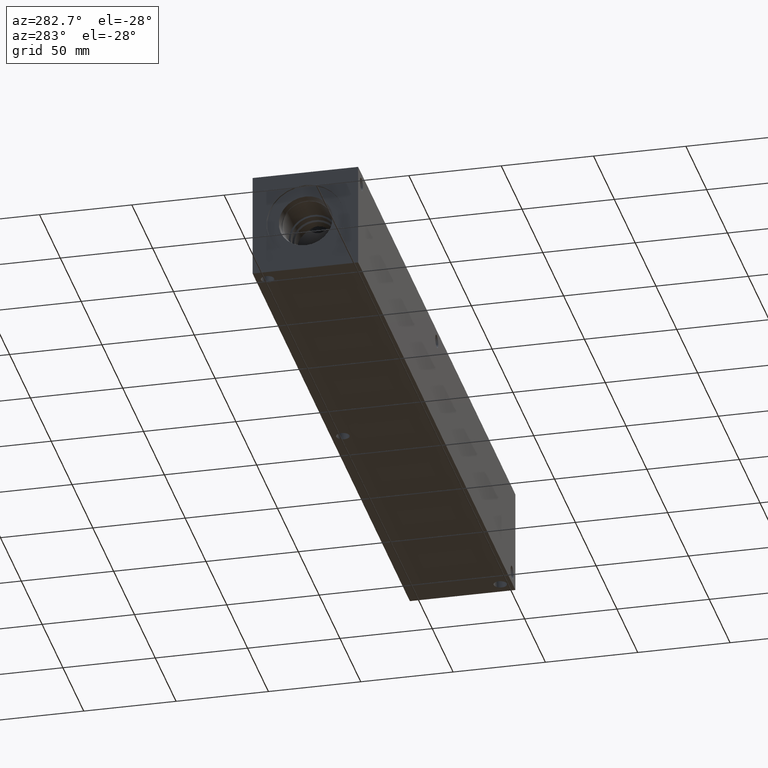
[diagram: clean part render]
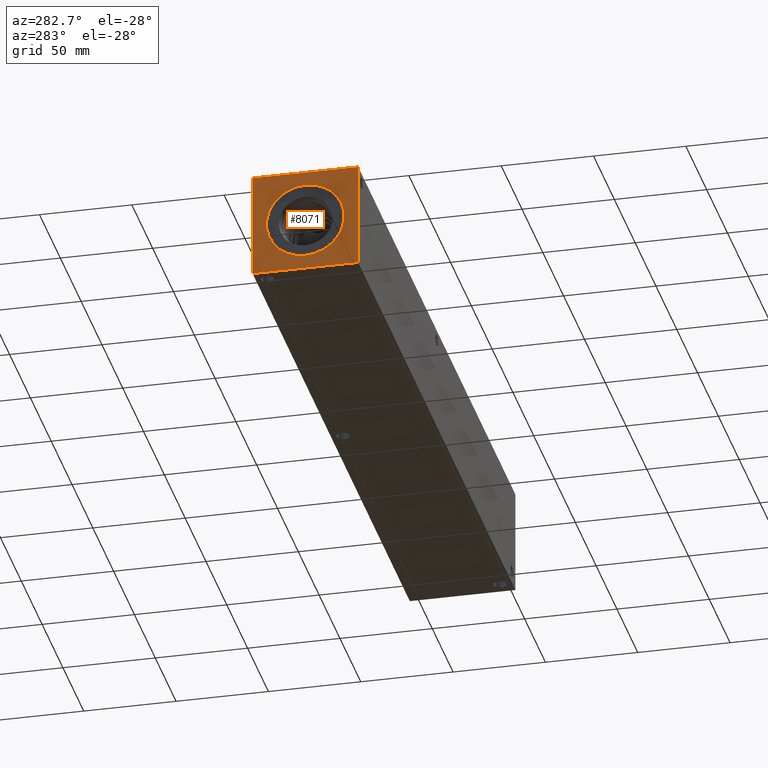
[diagram: same view with one face highlighted and labeled with its STEP entity id]
A machine part, auxiliary view. The second image highlights one B-rep face of the part: STEP entity #8071.
In plain terms, the highlighted planar face has unit normal (-1, 0, 0).
Its self-contained STEP definition (entity closure, byte-faithful):
#261=CIRCLE('',#8541,21.0185);
#262=CIRCLE('',#8542,21.0185);
#326=FACE_BOUND('',#1430,.T.);
#544=PLANE('',#8555);
#959=FACE_OUTER_BOUND('',#1429,.T.);
#1429=EDGE_LOOP('',(#7198,#7199,#7200,#7201));
#1430=EDGE_LOOP('',(#7202,#7203));
#1677=LINE('',#12613,#2374);
#2135=LINE('',#14132,#2832);
#2136=LINE('',#14133,#2833);
#2137=LINE('',#14134,#2834);
#2374=VECTOR('',#8892,10.);
#2832=VECTOR('',#10182,10.);
#2833=VECTOR('',#10183,10.);
#2834=VECTOR('',#10184,10.);
#3398=VERTEX_POINT('',#12606);
#3401=VERTEX_POINT('',#12611);
#3839=VERTEX_POINT('',#14101);
#3840=VERTEX_POINT('',#14102);
#3849=VERTEX_POINT('',#14130);
#3850=VERTEX_POINT('',#14131);
#4312=EDGE_CURVE('',#3401,#3398,#1677,.T.);
#4959=EDGE_CURVE('',#3839,#3840,#261,.T.);
#4960=EDGE_CURVE('',#3840,#3839,#262,.T.);
#4973=EDGE_CURVE('',#3849,#3850,#2135,.T.);
#4974=EDGE_CURVE('',#3850,#3398,#2136,.T.);
#4975=EDGE_CURVE('',#3849,#3401,#2137,.T.);
#7198=ORIENTED_EDGE('',*,*,#4973,.T.);
#7199=ORIENTED_EDGE('',*,*,#4974,.T.);
#7200=ORIENTED_EDGE('',*,*,#4312,.F.);
#7201=ORIENTED_EDGE('',*,*,#4975,.F.);
#7202=ORIENTED_EDGE('',*,*,#4959,.T.);
#7203=ORIENTED_EDGE('',*,*,#4960,.T.);
#8071=ADVANCED_FACE('',(#959,#326),#544,.T.);
#8541=AXIS2_PLACEMENT_3D('',#14103,#10148,#10149);
#8542=AXIS2_PLACEMENT_3D('',#14104,#10150,#10151);
#8555=AXIS2_PLACEMENT_3D('',#14129,#10180,#10181);
#8892=DIRECTION('',(0.,-1.,0.));
#10148=DIRECTION('center_axis',(1.,0.,0.));
#10149=DIRECTION('ref_axis',(0.,0.,1.));
#10150=DIRECTION('center_axis',(1.,0.,0.));
#10151=DIRECTION('ref_axis',(0.,0.,1.));
#10180=DIRECTION('center_axis',(-1.,0.,0.));
#10181=DIRECTION('ref_axis',(0.,-1.,0.));
#10182=DIRECTION('',(0.,-1.,0.));
#10183=DIRECTION('',(0.,0.,1.));
#10184=DIRECTION('',(0.,0.,1.));
#12606=CARTESIAN_POINT('',(0.,0.,57.15));
#12611=CARTESIAN_POINT('',(0.,57.15,57.15));
#12613=CARTESIAN_POINT('',(0.,57.15,57.15));
#14101=CARTESIAN_POINT('',(0.,28.575,49.5935));
#14102=CARTESIAN_POINT('',(0.,28.575,7.55649999999999));
#14103=CARTESIAN_POINT('Origin',(0.,28.575,28.575));
#14104=CARTESIAN_POINT('Origin',(0.,28.575,28.575));
#14129=CARTESIAN_POINT('Origin',(0.,57.15,0.));
#14130=CARTESIAN_POINT('',(0.,57.15,0.));
#14131=CARTESIAN_POINT('',(0.,0.,0.));
#14132=CARTESIAN_POINT('',(0.,57.15,0.));
#14133=CARTESIAN_POINT('',(0.,0.,0.));
#14134=CARTESIAN_POINT('',(0.,57.15,0.));